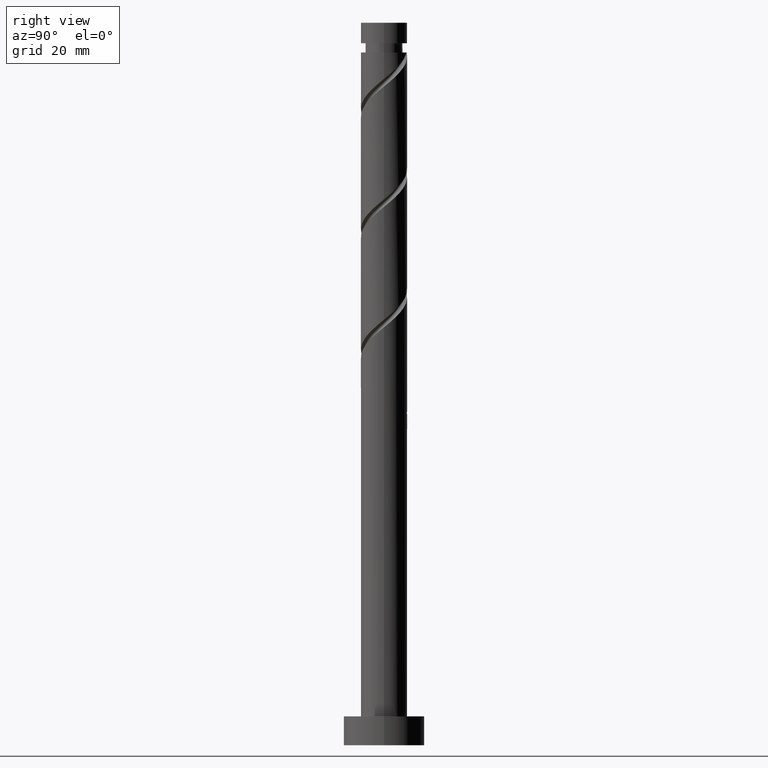
[diagram: clean part render]
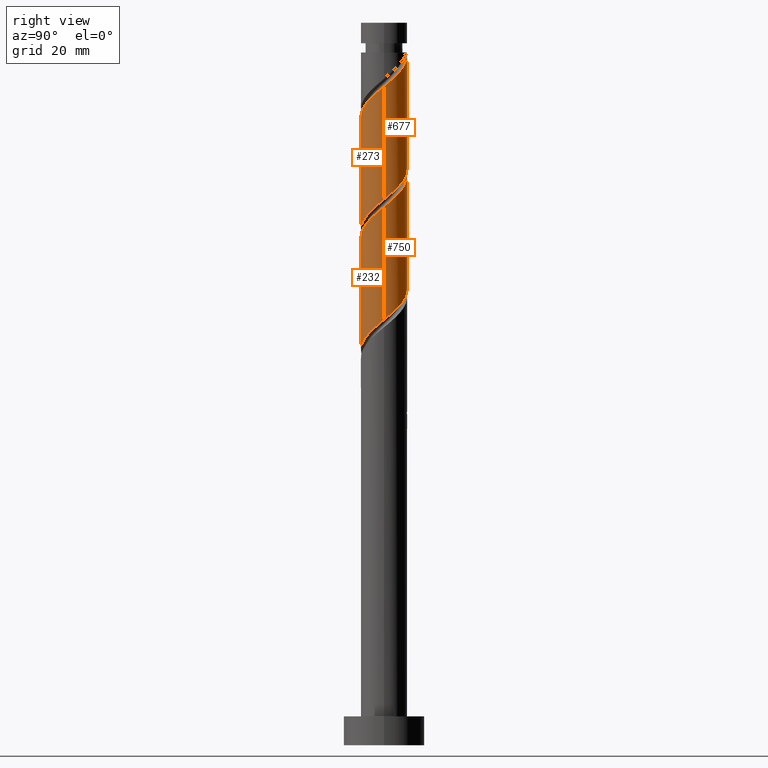
[diagram: same view with one multi-face feature highlighted, each face labeled with its STEP entity id]
A machine part, right view. The highlighted faces form ONE feature: a constant-radius fillet chain: 4 tangent blend faces with common blend radius 4 mm. The faces share edges in the B-rep.
Their STEP definitions:
[1] entity #232 (Cylinder):
#27 =( BOUNDED_CURVE ( )  B_SPLINE_CURVE ( 2, ( #1011, #561, #1035, #413, #1244, #1369, #903, #1252, #176, #667, #1378, #1133, #787, #1257, #1141, #63, #547, #1020, #1514, #455, #1411, #821, #595 ),
 .UNSPECIFIED., .F., .T. ) 
 B_SPLINE_CURVE_WITH_KNOTS ( ( 3, 2, 2, 2, 2, 2, 2, 2, 2, 2, 2, 3 ),
 ( 0.3045322023138551937, 0.3125000000000000000, 0.3249999999999999556, 0.3375000000000000222, 0.3499999999999999778, 0.3625000000000000444, 0.3750000000000000000, 0.3874999999999999556, 0.4000000000000000222, 0.4124999999999999778, 0.4250000000000000444, 0.4295322023138551937 ),
 .UNSPECIFIED. ) 
 CURVE ( )  GEOMETRIC_REPRESENTATION_ITEM ( )  RATIONAL_B_SPLINE_CURVE ( ( 0.9039174447099411758, 0.9019565955404704738, 0.9090909090909189416, 0.8978984914501350056, 0.9090909090909189416, 0.8978984914501350056, 0.9090909090909189416, 0.8978984914501350056, 0.9090909090909189416, 0.8978984914501350056, 0.9090909090909189416, 0.8978984914501350056, 0.9090909090909189416, 0.8978984914501350056, 0.9090909090909189416, 0.8978984914501350056, 0.9090909090909189416, 0.8978984914501350056, 0.9090909090909189416, 0.8978984914501350056, 0.9090909090909189416, 0.9050328050005833624, 0.9039174447099411758 ) ) 
 REPRESENTATION_ITEM ( '' )  );
#63 = CARTESIAN_POINT ( 'NONE',  ( 2.519899137249415944, -3.170406666830039466, 90.15939096344952475 ) ) ;
#67 = VERTEX_POINT ( 'NONE', #348 ) ;
#71 = FACE_OUTER_BOUND ( 'NONE', #1275, .T. ) ;
#102 = CARTESIAN_POINT ( 'NONE',  ( 0.4543151893961418497, -3.974115965681417784, 68.80522429678288177 ) ) ;
#176 = CARTESIAN_POINT ( 'NONE',  ( -1.660148792339435131, -3.639217771347842412, 86.51355763011622457 ) ) ;
#213 = CARTESIAN_POINT ( 'NONE',  ( 3.793927577315138855, -1.416856955757478387, 72.45105763011623878 ) ) ;
#221 = CARTESIAN_POINT ( 'NONE',  ( 1.660148792339431356, -3.639217771347837971, 69.84689096344955317 ) ) ;
#232 = ADVANCED_FACE ( 'NONE', ( #71 ), #295, .T. ) ;
#270 = CARTESIAN_POINT ( 'NONE',  ( -3.902159508677975452, -1.083753322405397901, 64.11772429678291019 ) ) ;
#277 = CARTESIAN_POINT ( 'NONE',  ( -4.000000000000000888, -0.2278949497857296891, 63.40953782746041867 ) ) ;
#284 = ORIENTED_EDGE ( 'NONE', *, *, #318, .F. ) ;
#295 = CYLINDRICAL_SURFACE ( 'NONE', #1294, 4.000000000000000000 ) ;
#312 = ORIENTED_EDGE ( 'NONE', *, *, #1224, .F. ) ;
#318 = EDGE_CURVE ( 'NONE', #1248, #709, #27, .T. ) ;
#338 = CARTESIAN_POINT ( 'NONE',  ( 2.703475464551750029, -2.948087585633557772, 70.88855763011621036 ) ) ;
#348 = CARTESIAN_POINT ( 'NONE',  ( -4.000000000000001776, 3.988165340332742643E-15, 63.22002673825315355 ) ) ;
#385 = CARTESIAN_POINT ( 'NONE',  ( -0.7959899496852960166, -3.920000000000000817, 67.76355763011621036 ) ) ;
#413 = CARTESIAN_POINT ( 'NONE',  ( -3.793927577315144628, -1.416856955757479053, 83.90939096344952475 ) ) ;
#455 = CARTESIAN_POINT ( 'NONE',  ( 3.902159508677978561, -1.083753322405400343, 92.24272429678288177 ) ) ;
#461 = VERTEX_POINT ( 'NONE', #473 ) ;
#473 = CARTESIAN_POINT ( 'NONE',  ( 4.000000000000001776, -4.497930834961739408E-15, 73.63669340491979654 ) ) ;
#474 = CARTESIAN_POINT ( 'NONE',  ( 3.920000000000000817, -0.7959899496852961276, 72.97189096344952475 ) ) ;
#506 = CARTESIAN_POINT ( 'NONE',  ( -0.1751229436131137573, -4.046072422684862779, 68.28439096344956738 ) ) ;
#547 = CARTESIAN_POINT ( 'NONE',  ( 2.948087585633561325, -2.703475464551753582, 90.68022429678286755 ) ) ;
#556 = DIRECTION ( 'NONE',  ( -0.000000000000000000, -0.000000000000000000, -1.000000000000000000 ) ) ;
#561 = CARTESIAN_POINT ( 'NONE',  ( -4.000000000000006217, -0.4020151261036834511, 83.05805976405378033 ) ) ;
#595 = CARTESIAN_POINT ( 'NONE',  ( 4.000000000000005329, 2.398896445312912959E-15, 93.14042185531260998 ) ) ;
#649 = CARTESIAN_POINT ( 'NONE',  ( -1.416856955757477943, -3.793927577315138855, 67.24272429678288177 ) ) ;
#667 = CARTESIAN_POINT ( 'NONE',  ( -1.083753322405400121, -3.902159508677978561, 87.03439096344952475 ) ) ;
#704 = CARTESIAN_POINT ( 'NONE',  ( 3.170406666830035025, -2.519899137249414167, 71.40939096344953896 ) ) ;
#709 = VERTEX_POINT ( 'NONE', #1013 ) ;
#737 = CARTESIAN_POINT ( 'NONE',  ( -3.376276034017704042, -2.236544262273465034, 65.15939096344955317 ) ) ;
#766 = EDGE_CURVE ( 'NONE', #461, #67, #1402, .T. ) ;
#787 = CARTESIAN_POINT ( 'NONE',  ( 0.7959899496852953504, -3.920000000000007034, 88.59689096344955317 ) ) ;
#798 = LINE ( 'NONE', #1263, #1321 ) ;
#821 = CARTESIAN_POINT ( 'NONE',  ( 4.000000000000004441, -0.2278949497857343798, 92.95091076610533776 ) ) ;
#864 = CARTESIAN_POINT ( 'NONE',  ( -1.968378046503446388, -3.482167122072586718, 66.72189096344955317 ) ) ;
#877 = CARTESIAN_POINT ( 'NONE',  ( -4.000000000000001776, 3.988165340332741854E-15, 63.22002673825315355 ) ) ;
#885 = CARTESIAN_POINT ( 'NONE',  ( 4.000000000000000000, 4.898587196589412829E-16, 125.0000000000000000 ) ) ;
#903 = CARTESIAN_POINT ( 'NONE',  ( -2.703475464551753582, -2.948087585633561325, 85.47189096344953896 ) ) ;
#908 = CARTESIAN_POINT ( 'NONE',  ( 0.000000000000000000, 0.000000000000000000, 125.0000000000000000 ) ) ;
#951 = CARTESIAN_POINT ( 'NONE',  ( 3.482167122072586274, -1.968378046503446388, 71.93022429678289598 ) ) ;
#977 = EDGE_CURVE ( 'NONE', #1248, #67, #798, .T. ) ;
#981 = CARTESIAN_POINT ( 'NONE',  ( -2.948087585633557772, -2.703475464551750029, 65.68022429678288177 ) ) ;
#1011 = CARTESIAN_POINT ( 'NONE',  ( -4.000000000000005329, -2.998620556641140804E-15, 82.72375518864592436 ) ) ;
#1013 = CARTESIAN_POINT ( 'NONE',  ( 4.000000000000005329, 2.398896445312912959E-15, 93.14042185531260998 ) ) ;
#1020 = CARTESIAN_POINT ( 'NONE',  ( 3.376276034017707595, -2.236544262273469919, 91.20105763011622457 ) ) ;
#1028 = DIRECTION ( 'NONE',  ( -1.000000000000000000, 0.000000000000000000, 0.000000000000000000 ) ) ;
#1032 = ORIENTED_EDGE ( 'NONE', *, *, #766, .F. ) ;
#1035 = CARTESIAN_POINT ( 'NONE',  ( -3.920000000000007034, -0.7959899496852957945, 83.38855763011621036 ) ) ;
#1067 = CARTESIAN_POINT ( 'NONE',  ( 4.000000000000001776, -4.497930834961739408E-15, 73.63669340491979654 ) ) ;
#1087 = CARTESIAN_POINT ( 'NONE',  ( -3.639217771347837971, -1.660148792339431356, 64.63855763011622457 ) ) ;
#1129 = ORIENTED_EDGE ( 'NONE', *, *, #977, .T. ) ;
#1132 = DIRECTION ( 'NONE',  ( -0.000000000000000000, -0.000000000000000000, -1.000000000000000000 ) ) ;
#1133 = CARTESIAN_POINT ( 'NONE',  ( 0.1751229436131121475, -4.046072422684866332, 88.07605763011621036 ) ) ;
#1141 = CARTESIAN_POINT ( 'NONE',  ( 1.968378046503447498, -3.482167122072591603, 89.63855763011621036 ) ) ;
#1177 = CARTESIAN_POINT ( 'NONE',  ( 1.083753322405397457, -3.902159508677975452, 69.32605763011621036 ) ) ;
#1224 = EDGE_CURVE ( 'NONE', #709, #461, #1270, .T. ) ;
#1244 = CARTESIAN_POINT ( 'NONE',  ( -3.482167122072591603, -1.968378046503447498, 84.43022429678286755 ) ) ;
#1248 = VERTEX_POINT ( 'NONE', #1490 ) ;
#1252 = CARTESIAN_POINT ( 'NONE',  ( -2.236544262273469474, -3.376276034017707595, 85.99272429678288177 ) ) ;
#1257 = CARTESIAN_POINT ( 'NONE',  ( 1.416856955757478831, -3.793927577315144628, 89.11772429678286755 ) ) ;
#1263 = CARTESIAN_POINT ( 'NONE',  ( -4.000000000000000000, 0.000000000000000000, 125.0000000000000000 ) ) ;
#1270 = LINE ( 'NONE', #885, #1511 ) ;
#1275 = EDGE_LOOP ( 'NONE', ( #312, #284, #1129, #1032 ) ) ;
#1287 = CARTESIAN_POINT ( 'NONE',  ( 3.999999999999999112, -0.4020151261036926660, 73.30238882951198320 ) ) ;
#1294 = AXIS2_PLACEMENT_3D ( 'NONE', #908, #556, #1028 ) ;
#1297 = CARTESIAN_POINT ( 'NONE',  ( 2.236544262273464589, -3.376276034017704486, 70.36772429678291019 ) ) ;
#1321 = VECTOR ( 'NONE', #1132, 1000.000000000000000 ) ;
#1323 = CARTESIAN_POINT ( 'NONE',  ( -2.519899137249414167, -3.170406666830035025, 66.20105763011621036 ) ) ;
#1353 = CARTESIAN_POINT ( 'NONE',  ( -3.974115965681417784, -0.4543151893961420718, 63.59689096344956027 ) ) ;
#1369 = CARTESIAN_POINT ( 'NONE',  ( -3.170406666830039466, -2.519899137249416388, 84.95105763011622457 ) ) ;
#1378 = CARTESIAN_POINT ( 'NONE',  ( -0.4543151893961439591, -3.974115965681423113, 87.55522429678289598 ) ) ;
#1402 =( BOUNDED_CURVE ( )  B_SPLINE_CURVE ( 2, ( #1067, #1287, #474, #213, #951, #704, #338, #1297, #221, #1177, #102, #506, #385, #649, #864, #1323, #981, #737, #1087, #270, #1353, #277, #877 ),
 .UNSPECIFIED., .F., .T. ) 
 B_SPLINE_CURVE_WITH_KNOTS ( ( 3, 2, 2, 2, 2, 2, 2, 2, 2, 2, 2, 3 ),
 ( 0.8045322023138553602, 0.8125000000000000000, 0.8249999999999999556, 0.8375000000000000222, 0.8499999999999999778, 0.8625000000000000444, 0.8750000000000000000, 0.8874999999999999556, 0.9000000000000000222, 0.9124999999999999778, 0.9250000000000000444, 0.9295322023138552492 ),
 .UNSPECIFIED. ) 
 CURVE ( )  GEOMETRIC_REPRESENTATION_ITEM ( )  RATIONAL_B_SPLINE_CURVE ( ( 0.9039174447099352916, 0.9019565955404648117, 0.9090909090909131685, 0.8978984914501292325, 0.9090909090909131685, 0.8978984914501292325, 0.9090909090909131685, 0.8978984914501292325, 0.9090909090909131685, 0.8978984914501292325, 0.9090909090909131685, 0.8978984914501292325, 0.9090909090909131685, 0.8978984914501292325, 0.9090909090909131685, 0.8978984914501292325, 0.9090909090909131685, 0.8978984914501292325, 0.9090909090909131685, 0.8978984914501292325, 0.9090909090909131685, 0.9050328050005775893, 0.9039174447099354026 ) ) 
 REPRESENTATION_ITEM ( '' )  );
#1411 = CARTESIAN_POINT ( 'NONE',  ( 3.974115965681423113, -0.4543151893961441812, 92.76355763011621036 ) ) ;
#1490 = CARTESIAN_POINT ( 'NONE',  ( -4.000000000000005329, -2.998620556641140804E-15, 82.72375518864592436 ) ) ;
#1511 = VECTOR ( 'NONE', #1513, 1000.000000000000000 ) ;
#1513 = DIRECTION ( 'NONE',  ( -0.000000000000000000, -0.000000000000000000, -1.000000000000000000 ) ) ;
#1514 = CARTESIAN_POINT ( 'NONE',  ( 3.639217771347842412, -1.660148792339435131, 91.72189096344953896 ) ) ;
[2] entity #750 (Cylinder):
#18 = EDGE_CURVE ( 'NONE', #709, #676, #1425, .T. ) ;
#57 = EDGE_CURVE ( 'NONE', #1260, #461, #1312, .T. ) ;
#74 = CARTESIAN_POINT ( 'NONE',  ( -3.482167122072586718, 1.968378046503445944, 82.34689096344953896 ) ) ;
#93 = EDGE_LOOP ( 'NONE', ( #1497, #883, #1269, #937 ) ) ;
#114 = VECTOR ( 'NONE', #1422, 1000.000000000000000 ) ;
#132 = CARTESIAN_POINT ( 'NONE',  ( 3.974115965681417784, 0.4543151893961415722, 74.01355763011619615 ) ) ;
#193 = CARTESIAN_POINT ( 'NONE',  ( -1.968378046503447498, 3.482167122072591603, 100.0552242967828533 ) ) ;
#200 = CARTESIAN_POINT ( 'NONE',  ( -3.974115965681423113, 0.4543151893961436816, 103.1802242967828818 ) ) ;
#206 = CARTESIAN_POINT ( 'NONE',  ( -3.376276034017708483, 2.236544262273469030, 101.6177242967828533 ) ) ;
#252 = CARTESIAN_POINT ( 'NONE',  ( 1.416856955757478609, 3.793927577315138855, 77.65939096344956738 ) ) ;
#286 = CARTESIAN_POINT ( 'NONE',  ( -4.000000000000001776, 3.988165340332742643E-15, 84.05336007158646794 ) ) ;
#324 = CARTESIAN_POINT ( 'NONE',  ( 4.000000000000006217, 0.4020151261036827850, 93.47472643072046594 ) ) ;
#332 = CARTESIAN_POINT ( 'NONE',  ( -1.416856955757479275, 3.793927577315144628, 99.53439096344955317 ) ) ;
#336 = CARTESIAN_POINT ( 'NONE',  ( -4.000000000000000000, 0.000000000000000000, 125.0000000000000000 ) ) ;
#346 = FACE_OUTER_BOUND ( 'NONE', #93, .T. ) ;
#382 = EDGE_CURVE ( 'NONE', #676, #1260, #1194, .T. ) ;
#441 = CARTESIAN_POINT ( 'NONE',  ( -2.519899137249416388, 3.170406666830039466, 100.5760576301162104 ) ) ;
#459 = CARTESIAN_POINT ( 'NONE',  ( 1.083753322405400565, 3.902159508677978561, 97.45105763011619615 ) ) ;
#461 = VERTEX_POINT ( 'NONE', #473 ) ;
#473 = CARTESIAN_POINT ( 'NONE',  ( 4.000000000000001776, -4.497930834961739408E-15, 73.63669340491979654 ) ) ;
#486 = CARTESIAN_POINT ( 'NONE',  ( 1.968378046503446832, 3.482167122072586274, 77.13855763011623878 ) ) ;
#529 = CARTESIAN_POINT ( 'NONE',  ( 3.376276034017704486, 2.236544262273464145, 75.57605763011621036 ) ) ;
#552 = CARTESIAN_POINT ( 'NONE',  ( -2.236544262273465034, 3.376276034017704486, 80.78439096344956738 ) ) ;
#558 = CARTESIAN_POINT ( 'NONE',  ( -0.4543151893961423493, 3.974115965681417784, 79.22189096344953896 ) ) ;
#565 = CARTESIAN_POINT ( 'NONE',  ( 2.236544262273469919, 3.376276034017707595, 96.40939096344955317 ) ) ;
#573 = CARTESIAN_POINT ( 'NONE',  ( 3.482167122072591603, 1.968378046503446832, 94.84689096344953896 ) ) ;
#581 = CARTESIAN_POINT ( 'NONE',  ( -4.000000000000004441, 0.2278949497857366280, 103.3675774327719949 ) ) ;
#676 = VERTEX_POINT ( 'NONE', #905 ) ;
#687 = CARTESIAN_POINT ( 'NONE',  ( -3.902159508677978561, 1.083753322405399899, 102.6593909634495532 ) ) ;
#692 = CARTESIAN_POINT ( 'NONE',  ( 0.1751229436131132022, 4.046072422684862779, 78.70105763011622457 ) ) ;
#697 = CARTESIAN_POINT ( 'NONE',  ( 0.4543151893961445698, 3.974115965681423113, 97.97189096344956738 ) ) ;
#709 = VERTEX_POINT ( 'NONE', #1013 ) ;
#712 = DIRECTION ( 'NONE',  ( -0.000000000000000000, -0.000000000000000000, -1.000000000000000000 ) ) ;
#714 = CARTESIAN_POINT ( 'NONE',  ( 2.703475464551754026, 2.948087585633560437, 95.88855763011622457 ) ) ;
#750 = ADVANCED_FACE ( 'NONE', ( #346 ), #1186, .T. ) ;
#800 = AXIS2_PLACEMENT_3D ( 'NONE', #1414, #712, #815 ) ;
#808 = CARTESIAN_POINT ( 'NONE',  ( -0.7959899496852949063, 3.920000000000007034, 99.01355763011621036 ) ) ;
#815 = DIRECTION ( 'NONE',  ( -1.000000000000000000, 0.000000000000000000, 0.000000000000000000 ) ) ;
#826 = CARTESIAN_POINT ( 'NONE',  ( -2.703475464551750473, 2.948087585633557772, 81.30522429678288177 ) ) ;
#883 = ORIENTED_EDGE ( 'NONE', *, *, #1224, .T. ) ;
#885 = CARTESIAN_POINT ( 'NONE',  ( 4.000000000000000000, 4.898587196589412829E-16, 125.0000000000000000 ) ) ;
#886 = CARTESIAN_POINT ( 'NONE',  ( 2.519899137249414611, 3.170406666830035025, 76.61772429678288177 ) ) ;
#905 = CARTESIAN_POINT ( 'NONE',  ( -4.000000000000005329, -9.295723725587533771E-16, 103.5570885219792814 ) ) ;
#911 = CARTESIAN_POINT ( 'NONE',  ( 3.793927577315144628, 1.416856955757478831, 94.32605763011619615 ) ) ;
#935 = CARTESIAN_POINT ( 'NONE',  ( 1.660148792339435797, 3.639217771347842412, 96.93022429678286755 ) ) ;
#937 = ORIENTED_EDGE ( 'NONE', *, *, #382, .F. ) ;
#1013 = CARTESIAN_POINT ( 'NONE',  ( 4.000000000000005329, 2.398896445312912959E-15, 93.14042185531260998 ) ) ;
#1023 = CARTESIAN_POINT ( 'NONE',  ( 3.920000000000007034, 0.7959899496852951284, 93.80522429678289598 ) ) ;
#1031 = CARTESIAN_POINT ( 'NONE',  ( -4.000000000000001776, 3.988165340332742643E-15, 84.05336007158648215 ) ) ;
#1048 = CARTESIAN_POINT ( 'NONE',  ( -3.639217771347842856, 1.660148792339434465, 102.1385576301162104 ) ) ;
#1089 = CARTESIAN_POINT ( 'NONE',  ( 3.639217771347839303, 1.660148792339430690, 75.05522429678291019 ) ) ;
#1150 = CARTESIAN_POINT ( 'NONE',  ( -3.920000000000000817, 0.7959899496852955725, 83.38855763011621036 ) ) ;
#1155 = CARTESIAN_POINT ( 'NONE',  ( 0.7959899496852962386, 3.920000000000000817, 78.18022429678291019 ) ) ;
#1171 = CARTESIAN_POINT ( 'NONE',  ( -4.000000000000005329, -9.295723725587533771E-16, 103.5570885219792814 ) ) ;
#1179 = CARTESIAN_POINT ( 'NONE',  ( -3.999999999999999112, 0.4020151261036921109, 83.71905549617865461 ) ) ;
#1186 = CYLINDRICAL_SURFACE ( 'NONE', #800, 4.000000000000000000 ) ;
#1194 = LINE ( 'NONE', #336, #114 ) ;
#1204 = CARTESIAN_POINT ( 'NONE',  ( 2.948087585633558660, 2.703475464551750029, 76.09689096344953896 ) ) ;
#1224 = EDGE_CURVE ( 'NONE', #709, #461, #1270, .T. ) ;
#1260 = VERTEX_POINT ( 'NONE', #286 ) ;
#1269 = ORIENTED_EDGE ( 'NONE', *, *, #57, .F. ) ;
#1270 = LINE ( 'NONE', #885, #1511 ) ;
#1274 = CARTESIAN_POINT ( 'NONE',  ( 4.000000000000005329, 2.398896445312912959E-15, 93.14042185531260998 ) ) ;
#1281 = CARTESIAN_POINT ( 'NONE',  ( -1.660148792339432022, 3.639217771347837971, 80.26355763011623878 ) ) ;
#1300 = CARTESIAN_POINT ( 'NONE',  ( -2.948087585633561769, 2.703475464551753582, 101.0968909634495532 ) ) ;
#1312 =( BOUNDED_CURVE ( )  B_SPLINE_CURVE ( 2, ( #1031, #1179, #1150, #1547, #74, #1416, #826, #552, #1281, #1517, #558, #692, #1155, #252, #486, #886, #1204, #529, #1089, #1480, #132, #1314, #1362 ),
 .UNSPECIFIED., .F., .T. ) 
 B_SPLINE_CURVE_WITH_KNOTS ( ( 3, 2, 2, 2, 2, 2, 2, 2, 2, 2, 2, 3 ),
 ( 0.6795322023138553602, 0.6875000000000000000, 0.6999999999999999556, 0.7125000000000000222, 0.7249999999999999778, 0.7375000000000000444, 0.7500000000000000000, 0.7624999999999999556, 0.7750000000000000222, 0.7874999999999999778, 0.8000000000000000444, 0.8045322023138553602 ),
 .UNSPECIFIED. ) 
 CURVE ( )  GEOMETRIC_REPRESENTATION_ITEM ( )  RATIONAL_B_SPLINE_CURVE ( ( 0.9039174447099352916, 0.9019565955404648117, 0.9090909090909131685, 0.8978984914501292325, 0.9090909090909131685, 0.8978984914501292325, 0.9090909090909131685, 0.8978984914501292325, 0.9090909090909131685, 0.8978984914501292325, 0.9090909090909131685, 0.8978984914501292325, 0.9090909090909131685, 0.8978984914501292325, 0.9090909090909131685, 0.8978984914501292325, 0.9090909090909131685, 0.8978984914501292325, 0.9090909090909131685, 0.8978984914501292325, 0.9090909090909131685, 0.9050328050005773672, 0.9039174447099352916 ) ) 
 REPRESENTATION_ITEM ( '' )  );
#1314 = CARTESIAN_POINT ( 'NONE',  ( 4.000000000000002665, 0.2278949497857236939, 73.82620449412709718 ) ) ;
#1362 = CARTESIAN_POINT ( 'NONE',  ( 4.000000000000001776, -4.497930834961739408E-15, 73.63669340491979654 ) ) ;
#1394 = CARTESIAN_POINT ( 'NONE',  ( 3.170406666830039910, 2.519899137249415944, 95.36772429678286755 ) ) ;
#1407 = CARTESIAN_POINT ( 'NONE',  ( -0.1751229436131116479, 4.046072422684866332, 98.49272429678285334 ) ) ;
#1414 = CARTESIAN_POINT ( 'NONE',  ( 0.000000000000000000, 0.000000000000000000, 125.0000000000000000 ) ) ;
#1416 = CARTESIAN_POINT ( 'NONE',  ( -3.170406666830035025, 2.519899137249414167, 81.82605763011622457 ) ) ;
#1422 = DIRECTION ( 'NONE',  ( -0.000000000000000000, -0.000000000000000000, -1.000000000000000000 ) ) ;
#1425 =( BOUNDED_CURVE ( )  B_SPLINE_CURVE ( 2, ( #1274, #324, #1023, #911, #573, #1394, #714, #565, #935, #459, #697, #1407, #808, #332, #193, #441, #1300, #206, #1048, #687, #200, #581, #1171 ),
 .UNSPECIFIED., .F., .T. ) 
 B_SPLINE_CURVE_WITH_KNOTS ( ( 3, 2, 2, 2, 2, 2, 2, 2, 2, 2, 2, 3 ),
 ( 0.4295322023138551937, 0.4375000000000000000, 0.4499999999999999556, 0.4625000000000000222, 0.4749999999999999778, 0.4875000000000000444, 0.5000000000000000000, 0.5124999999999999556, 0.5250000000000000222, 0.5374999999999999778, 0.5500000000000000444, 0.5545322023138551382 ),
 .UNSPECIFIED. ) 
 CURVE ( )  GEOMETRIC_REPRESENTATION_ITEM ( )  RATIONAL_B_SPLINE_CURVE ( ( 0.9039174447099411758, 0.9019565955404704738, 0.9090909090909189416, 0.8978984914501350056, 0.9090909090909189416, 0.8978984914501350056, 0.9090909090909189416, 0.8978984914501350056, 0.9090909090909189416, 0.8978984914501350056, 0.9090909090909189416, 0.8978984914501350056, 0.9090909090909189416, 0.8978984914501350056, 0.9090909090909189416, 0.8978984914501350056, 0.9090909090909189416, 0.8978984914501350056, 0.9090909090909189416, 0.8978984914501350056, 0.9090909090909189416, 0.9050328050005833624, 0.9039174447099411758 ) ) 
 REPRESENTATION_ITEM ( '' )  );
#1480 = CARTESIAN_POINT ( 'NONE',  ( 3.902159508677975452, 1.083753322405397457, 74.53439096344955317 ) ) ;
#1497 = ORIENTED_EDGE ( 'NONE', *, *, #18, .F. ) ;
#1511 = VECTOR ( 'NONE', #1513, 1000.000000000000000 ) ;
#1513 = DIRECTION ( 'NONE',  ( -0.000000000000000000, -0.000000000000000000, -1.000000000000000000 ) ) ;
#1517 = CARTESIAN_POINT ( 'NONE',  ( -1.083753322405397901, 3.902159508677975452, 79.74272429678289598 ) ) ;
#1547 = CARTESIAN_POINT ( 'NONE',  ( -3.793927577315138855, 1.416856955757477721, 82.86772429678289598 ) ) ;
[3] entity #273 (Cylinder):
#2 = CARTESIAN_POINT ( 'NONE',  ( -0.7959899496852960166, -3.920000000000000817, 88.59689096344956738 ) ) ;
#21 = CARTESIAN_POINT ( 'NONE',  ( 4.000000000000001776, -4.497930834961739408E-15, 94.47002673825316776 ) ) ;
#31 = CARTESIAN_POINT ( 'NONE',  ( -3.376276034017704042, -2.236544262273465034, 85.99272429678289598 ) ) ;
#66 = VECTOR ( 'NONE', #587, 1000.000000000000000 ) ;
#84 = CARTESIAN_POINT ( 'NONE',  ( 4.000000000000000000, 4.898587196589412829E-16, 125.0000000000000000 ) ) ;
#114 = VECTOR ( 'NONE', #1422, 1000.000000000000000 ) ;
#130 = CARTESIAN_POINT ( 'NONE',  ( -3.902159508677975452, -1.083753322405397901, 84.95105763011623878 ) ) ;
#153 = CARTESIAN_POINT ( 'NONE',  ( -0.1751229436131137573, -4.046072422684862779, 89.11772429678289598 ) ) ;
#166 = CARTESIAN_POINT ( 'NONE',  ( -4.000000000000005329, -9.295723725587533771E-16, 103.5570885219792814 ) ) ;
#173 = VERTEX_POINT ( 'NONE', #497 ) ;
#184 = DIRECTION ( 'NONE',  ( -1.000000000000000000, 0.000000000000000000, 0.000000000000000000 ) ) ;
#197 = CARTESIAN_POINT ( 'NONE',  ( -1.083753322405400121, -3.902159508677978561, 107.8677242967828818 ) ) ;
#249 = CARTESIAN_POINT ( 'NONE',  ( 0.4543151893961418497, -3.974115965681417784, 89.63855763011621036 ) ) ;
#273 = ADVANCED_FACE ( 'NONE', ( #1271 ), #1153, .T. ) ;
#286 = CARTESIAN_POINT ( 'NONE',  ( -4.000000000000001776, 3.988165340332742643E-15, 84.05336007158646794 ) ) ;
#294 = CARTESIAN_POINT ( 'NONE',  ( -3.793927577315144628, -1.416856955757479053, 104.7427242967829102 ) ) ;
#307 = CARTESIAN_POINT ( 'NONE',  ( 3.376276034017707595, -2.236544262273469919, 112.0343909634495674 ) ) ;
#313 = CARTESIAN_POINT ( 'NONE',  ( -3.170406666830039466, -2.519899137249416388, 105.7843909634495247 ) ) ;
#330 =( BOUNDED_CURVE ( )  B_SPLINE_CURVE ( 2, ( #166, #658, #892, #294, #535, #313, #1361, #405, #666, #197, #428, #682, #546, #1124, #1368, #672, #1015, #307, #1390, #913, #398, #1256, #1010 ),
 .UNSPECIFIED., .F., .T. ) 
 B_SPLINE_CURVE_WITH_KNOTS ( ( 3, 2, 2, 2, 2, 2, 2, 2, 2, 2, 2, 3 ),
 ( 0.5545322023138551382, 0.5625000000000000000, 0.5749999999999999556, 0.5875000000000000222, 0.5999999999999999778, 0.6125000000000000444, 0.6250000000000000000, 0.6374999999999999556, 0.6500000000000000222, 0.6624999999999999778, 0.6750000000000000444, 0.6795322023138551382 ),
 .UNSPECIFIED. ) 
 CURVE ( )  GEOMETRIC_REPRESENTATION_ITEM ( )  RATIONAL_B_SPLINE_CURVE ( ( 0.9039174447099411758, 0.9019565955404704738, 0.9090909090909189416, 0.8978984914501350056, 0.9090909090909189416, 0.8978984914501350056, 0.9090909090909189416, 0.8978984914501350056, 0.9090909090909189416, 0.8978984914501350056, 0.9090909090909189416, 0.8978984914501350056, 0.9090909090909189416, 0.8978984914501350056, 0.9090909090909189416, 0.8978984914501350056, 0.9090909090909189416, 0.8978984914501350056, 0.9090909090909189416, 0.8978984914501350056, 0.9090909090909189416, 0.9050328050005833624, 0.9039174447099411758 ) ) 
 REPRESENTATION_ITEM ( '' )  );
#336 = CARTESIAN_POINT ( 'NONE',  ( -4.000000000000000000, 0.000000000000000000, 125.0000000000000000 ) ) ;
#360 = CARTESIAN_POINT ( 'NONE',  ( -3.639217771347837971, -1.660148792339431356, 85.47189096344955317 ) ) ;
#372 = CARTESIAN_POINT ( 'NONE',  ( 3.170406666830035025, -2.519899137249414167, 92.24272429678288177 ) ) ;
#379 = CARTESIAN_POINT ( 'NONE',  ( 2.236544262273464589, -3.376276034017704486, 91.20105763011622457 ) ) ;
#382 = EDGE_CURVE ( 'NONE', #676, #1260, #1194, .T. ) ;
#398 = CARTESIAN_POINT ( 'NONE',  ( 3.974115965681423113, -0.4543151893961441812, 113.5968909634495247 ) ) ;
#405 = CARTESIAN_POINT ( 'NONE',  ( -2.236544262273469474, -3.376276034017707595, 106.8260576301162104 ) ) ;
#428 = CARTESIAN_POINT ( 'NONE',  ( -0.4543151893961439591, -3.974115965681423113, 108.3885576301162104 ) ) ;
#449 = EDGE_CURVE ( 'NONE', #173, #688, #1064, .T. ) ;
#497 = CARTESIAN_POINT ( 'NONE',  ( 4.000000000000005329, 3.298482612305254332E-16, 113.9737551886459386 ) ) ;
#512 = CARTESIAN_POINT ( 'NONE',  ( 3.482167122072586274, -1.968378046503446388, 92.76355763011621036 ) ) ;
#517 = CARTESIAN_POINT ( 'NONE',  ( -3.974115965681417784, -0.4543151893961420718, 84.43022429678288177 ) ) ;
#535 = CARTESIAN_POINT ( 'NONE',  ( -3.482167122072591603, -1.968378046503447498, 105.2635576301162104 ) ) ;
#546 = CARTESIAN_POINT ( 'NONE',  ( 0.7959899496852953504, -3.920000000000007034, 109.4302242967828818 ) ) ;
#587 = DIRECTION ( 'NONE',  ( -0.000000000000000000, -0.000000000000000000, -1.000000000000000000 ) ) ;
#615 = CARTESIAN_POINT ( 'NONE',  ( 3.920000000000000817, -0.7959899496852961276, 93.80522429678289598 ) ) ;
#633 = CARTESIAN_POINT ( 'NONE',  ( 4.000000000000002665, -0.4020151261036816193, 94.13572216284532601 ) ) ;
#642 = CARTESIAN_POINT ( 'NONE',  ( -1.968378046503446388, -3.482167122072586718, 87.55522429678289598 ) ) ;
#658 = CARTESIAN_POINT ( 'NONE',  ( -4.000000000000006217, -0.4020151261036805646, 103.8913930973871089 ) ) ;
#666 = CARTESIAN_POINT ( 'NONE',  ( -1.660148792339435131, -3.639217771347842412, 107.3468909634495105 ) ) ;
#672 = CARTESIAN_POINT ( 'NONE',  ( 2.519899137249415944, -3.170406666830039466, 110.9927242967828818 ) ) ;
#676 = VERTEX_POINT ( 'NONE', #905 ) ;
#678 = ORIENTED_EDGE ( 'NONE', *, *, #952, .F. ) ;
#682 = CARTESIAN_POINT ( 'NONE',  ( 0.1751229436131121475, -4.046072422684866332, 108.9093909634495532 ) ) ;
#688 = VERTEX_POINT ( 'NONE', #1022 ) ;
#690 = CARTESIAN_POINT ( 'NONE',  ( 0.000000000000000000, 0.000000000000000000, 125.0000000000000000 ) ) ;
#693 = ORIENTED_EDGE ( 'NONE', *, *, #873, .F. ) ;
#745 = CARTESIAN_POINT ( 'NONE',  ( -2.948087585633557772, -2.703475464551750029, 86.51355763011621036 ) ) ;
#754 = CARTESIAN_POINT ( 'NONE',  ( 1.660148792339431356, -3.639217771347837971, 90.68022429678286755 ) ) ;
#873 = EDGE_CURVE ( 'NONE', #688, #1260, #1041, .T. ) ;
#892 = CARTESIAN_POINT ( 'NONE',  ( -3.920000000000007034, -0.7959899496852957945, 104.2218909634495532 ) ) ;
#905 = CARTESIAN_POINT ( 'NONE',  ( -4.000000000000005329, -9.295723725587533771E-16, 103.5570885219792814 ) ) ;
#913 = CARTESIAN_POINT ( 'NONE',  ( 3.902159508677978561, -1.083753322405400343, 113.0760576301161819 ) ) ;
#952 = EDGE_CURVE ( 'NONE', #676, #173, #330, .T. ) ;
#956 = ORIENTED_EDGE ( 'NONE', *, *, #382, .T. ) ;
#961 = CARTESIAN_POINT ( 'NONE',  ( 1.083753322405397457, -3.902159508677975452, 90.15939096344955317 ) ) ;
#990 = CARTESIAN_POINT ( 'NONE',  ( -1.416856955757477943, -3.793927577315138855, 88.07605763011623878 ) ) ;
#997 = AXIS2_PLACEMENT_3D ( 'NONE', #690, #1125, #184 ) ;
#1010 = CARTESIAN_POINT ( 'NONE',  ( 4.000000000000005329, 3.298482612305254332E-16, 113.9737551886459386 ) ) ;
#1015 = CARTESIAN_POINT ( 'NONE',  ( 2.948087585633561325, -2.703475464551753582, 111.5135576301162104 ) ) ;
#1022 = CARTESIAN_POINT ( 'NONE',  ( 4.000000000000001776, -4.497930834961739408E-15, 94.47002673825316776 ) ) ;
#1040 = ORIENTED_EDGE ( 'NONE', *, *, #449, .F. ) ;
#1041 =( BOUNDED_CURVE ( )  B_SPLINE_CURVE ( 2, ( #21, #633, #615, #1103, #512, #372, #1472, #379, #754, #961, #249, #153, #2, #990, #642, #1110, #745, #31, #360, #130, #517, #1236, #1116 ),
 .UNSPECIFIED., .F., .T. ) 
 B_SPLINE_CURVE_WITH_KNOTS ( ( 3, 2, 2, 2, 2, 2, 2, 2, 2, 2, 2, 3 ),
 ( 0.5545322023138551382, 0.5625000000000000000, 0.5749999999999999556, 0.5875000000000000222, 0.5999999999999999778, 0.6125000000000000444, 0.6250000000000000000, 0.6374999999999999556, 0.6500000000000000222, 0.6624999999999999778, 0.6750000000000000444, 0.6795322023138553602 ),
 .UNSPECIFIED. ) 
 CURVE ( )  GEOMETRIC_REPRESENTATION_ITEM ( )  RATIONAL_B_SPLINE_CURVE ( ( 0.9039174447099354026, 0.9019565955404647006, 0.9090909090909131685, 0.8978984914501292325, 0.9090909090909131685, 0.8978984914501292325, 0.9090909090909131685, 0.8978984914501292325, 0.9090909090909131685, 0.8978984914501292325, 0.9090909090909131685, 0.8978984914501292325, 0.9090909090909131685, 0.8978984914501292325, 0.9090909090909131685, 0.8978984914501292325, 0.9090909090909131685, 0.8978984914501292325, 0.9090909090909131685, 0.8978984914501292325, 0.9090909090909131685, 0.9050328050005773672, 0.9039174447099352916 ) ) 
 REPRESENTATION_ITEM ( '' )  );
#1064 = LINE ( 'NONE', #84, #66 ) ;
#1103 = CARTESIAN_POINT ( 'NONE',  ( 3.793927577315138855, -1.416856955757478387, 93.28439096344956738 ) ) ;
#1110 = CARTESIAN_POINT ( 'NONE',  ( -2.519899137249414167, -3.170406666830035025, 87.03439096344959580 ) ) ;
#1116 = CARTESIAN_POINT ( 'NONE',  ( -4.000000000000001776, 3.988165340332742643E-15, 84.05336007158648215 ) ) ;
#1124 = CARTESIAN_POINT ( 'NONE',  ( 1.416856955757478831, -3.793927577315144628, 109.9510576301162104 ) ) ;
#1125 = DIRECTION ( 'NONE',  ( -0.000000000000000000, -0.000000000000000000, -1.000000000000000000 ) ) ;
#1153 = CYLINDRICAL_SURFACE ( 'NONE', #997, 4.000000000000000000 ) ;
#1194 = LINE ( 'NONE', #336, #114 ) ;
#1213 = EDGE_LOOP ( 'NONE', ( #1040, #678, #956, #693 ) ) ;
#1236 = CARTESIAN_POINT ( 'NONE',  ( -4.000000000000002665, -0.2278949497857242212, 84.24287116079376858 ) ) ;
#1256 = CARTESIAN_POINT ( 'NONE',  ( 4.000000000000004441, -0.2278949497857371831, 113.7842440994386664 ) ) ;
#1260 = VERTEX_POINT ( 'NONE', #286 ) ;
#1271 = FACE_OUTER_BOUND ( 'NONE', #1213, .T. ) ;
#1361 = CARTESIAN_POINT ( 'NONE',  ( -2.703475464551753582, -2.948087585633561325, 106.3052242967828676 ) ) ;
#1368 = CARTESIAN_POINT ( 'NONE',  ( 1.968378046503447498, -3.482167122072591603, 110.4718909634495390 ) ) ;
#1390 = CARTESIAN_POINT ( 'NONE',  ( 3.639217771347842412, -1.660148792339435131, 112.5552242967828676 ) ) ;
#1422 = DIRECTION ( 'NONE',  ( -0.000000000000000000, -0.000000000000000000, -1.000000000000000000 ) ) ;
#1472 = CARTESIAN_POINT ( 'NONE',  ( 2.703475464551750029, -2.948087585633557772, 91.72189096344955317 ) ) ;
[4] entity #677 (Cylinder):
#4 =( BOUNDED_CURVE ( )  B_SPLINE_CURVE ( 2, ( #321, #190, #422, #48, #303, #792, #780, #683, #429, #914, #406, #167, #1264, #893, #536, #1391, #1397, #1526, #1384, #314, #659, #799, #56 ),
 .UNSPECIFIED., .F., .T. ) 
 B_SPLINE_CURVE_WITH_KNOTS ( ( 3, 2, 2, 2, 2, 2, 2, 2, 2, 2, 2, 3 ),
 ( 0.4295322023138552492, 0.4375000000000000000, 0.4500000000000000111, 0.4625000000000000222, 0.4749999999999999778, 0.4874999999999999889, 0.5000000000000000000, 0.5124999999999999556, 0.5250000000000000222, 0.5374999999999999778, 0.5500000000000000444, 0.5545322023138551382 ),
 .UNSPECIFIED. ) 
 CURVE ( )  GEOMETRIC_REPRESENTATION_ITEM ( )  RATIONAL_B_SPLINE_CURVE ( ( 0.9039174447099354026, 0.9019565955404649227, 0.9090909090909131685, 0.8978984914501292325, 0.9090909090909131685, 0.8978984914501292325, 0.9090909090909131685, 0.8978984914501292325, 0.9090909090909131685, 0.8978984914501292325, 0.9090909090909131685, 0.8978984914501292325, 0.9090909090909131685, 0.8978984914501292325, 0.9090909090909131685, 0.8978984914501292325, 0.9090909090909131685, 0.8978984914501292325, 0.9090909090909131685, 0.8978984914501292325, 0.9090909090909131685, 0.9050328050005775893, 0.9039174447099354026 ) ) 
 REPRESENTATION_ITEM ( '' )  );
#12 = VECTOR ( 'NONE', #462, 1000.000000000000000 ) ;
#48 = CARTESIAN_POINT ( 'NONE',  ( -3.793927577315138855, 1.416856955757477721, 103.7010576301162530 ) ) ;
#56 = CARTESIAN_POINT ( 'NONE',  ( 4.000000000000001776, -4.497930834961739408E-15, 94.47002673825316776 ) ) ;
#66 = VECTOR ( 'NONE', #587, 1000.000000000000000 ) ;
#84 = CARTESIAN_POINT ( 'NONE',  ( 4.000000000000000000, 4.898587196589412829E-16, 125.0000000000000000 ) ) ;
#119 = DIRECTION ( 'NONE',  ( -0.000000000000000000, -0.000000000000000000, -1.000000000000000000 ) ) ;
#167 = CARTESIAN_POINT ( 'NONE',  ( 0.1751229436131132022, 4.046072422684862779, 99.53439096344956738 ) ) ;
#173 = VERTEX_POINT ( 'NONE', #497 ) ;
#180 = VERTEX_POINT ( 'NONE', #354 ) ;
#190 = CARTESIAN_POINT ( 'NONE',  ( -4.000000000000000000, 0.4020151261036883916, 104.5523888295119548 ) ) ;
#247 = EDGE_CURVE ( 'NONE', #900, #688, #4, .T. ) ;
#298 = CARTESIAN_POINT ( 'NONE',  ( 0.000000000000000000, 0.000000000000000000, 125.0000000000000000 ) ) ;
#303 = CARTESIAN_POINT ( 'NONE',  ( -3.482167122072586718, 1.968378046503445944, 103.1802242967828818 ) ) ;
#305 = FACE_OUTER_BOUND ( 'NONE', #366, .T. ) ;
#314 = CARTESIAN_POINT ( 'NONE',  ( 3.902159508677975452, 1.083753322405397457, 95.36772429678289598 ) ) ;
#321 = CARTESIAN_POINT ( 'NONE',  ( -4.000000000000000888, 1.919117156250341806E-15, 104.8866934049197965 ) ) ;
#345 = CARTESIAN_POINT ( 'NONE',  ( 0.000000000000000000, 0.000000000000000000, 119.8468909634495532 ) ) ;
#350 =( BOUNDED_CURVE ( )  B_SPLINE_CURVE ( 2, ( #1319, #958, #490, #1329, #640, #383, #994, #1352, #1573, #988, #1477, #479, #1227 ),
 .UNSPECIFIED., .F., .T. ) 
 B_SPLINE_CURVE_WITH_KNOTS ( ( 3, 2, 2, 2, 2, 2, 3 ),
 ( 0.6795322023138551382, 0.6875000000000000000, 0.6999999999999999556, 0.7125000000000000222, 0.7249999999999998668, 0.7374999999999999334, 0.7499999999999998890 ),
 .UNSPECIFIED. ) 
 CURVE ( )  GEOMETRIC_REPRESENTATION_ITEM ( )  RATIONAL_B_SPLINE_CURVE ( ( 0.9039174447099411758, 0.9019565955404704738, 0.9090909090909189416, 0.8978984914501350056, 0.9090909090909189416, 0.8978984914501350056, 0.9090909090909189416, 0.8978984914501350056, 0.9090909090909189416, 0.8978984914501350056, 0.9090909090909189416, 0.8978984914501351167, 0.9090909090909188306 ) ) 
 REPRESENTATION_ITEM ( '' )  );
#354 = CARTESIAN_POINT ( 'NONE',  ( -3.999999999999996447, 0.000000000000000000, 119.8468909634495532 ) ) ;
#366 = EDGE_LOOP ( 'NONE', ( #772, #1098, #1122, #1556, #566 ) ) ;
#383 = CARTESIAN_POINT ( 'NONE',  ( 3.170406666830039910, 2.519899137249415944, 116.2010576301162246 ) ) ;
#390 = AXIS2_PLACEMENT_3D ( 'NONE', #298, #1386, #686 ) ;
#406 = CARTESIAN_POINT ( 'NONE',  ( -0.4543151893961423493, 3.974115965681417784, 100.0552242967829102 ) ) ;
#422 = CARTESIAN_POINT ( 'NONE',  ( -3.920000000000000817, 0.7959899496852955725, 104.2218909634495390 ) ) ;
#429 = CARTESIAN_POINT ( 'NONE',  ( -1.660148792339432022, 3.639217771347837971, 101.0968909634495390 ) ) ;
#442 = EDGE_CURVE ( 'NONE', #180, #1181, #627, .T. ) ;
#449 = EDGE_CURVE ( 'NONE', #173, #688, #1064, .T. ) ;
#462 = DIRECTION ( 'NONE',  ( -0.000000000000000000, -0.000000000000000000, -1.000000000000000000 ) ) ;
#479 = CARTESIAN_POINT ( 'NONE',  ( -0.1751229436131060135, 4.046072422684865444, 119.3260576301161962 ) ) ;
#490 = CARTESIAN_POINT ( 'NONE',  ( 3.920000000000007034, 0.7959899496852951284, 114.6385576301162104 ) ) ;
#497 = CARTESIAN_POINT ( 'NONE',  ( 4.000000000000005329, 3.298482612305254332E-16, 113.9737551886459386 ) ) ;
#536 = CARTESIAN_POINT ( 'NONE',  ( 1.968378046503446832, 3.482167122072586274, 97.97189096344955317 ) ) ;
#566 = ORIENTED_EDGE ( 'NONE', *, *, #442, .T. ) ;
#587 = DIRECTION ( 'NONE',  ( -0.000000000000000000, -0.000000000000000000, -1.000000000000000000 ) ) ;
#627 = CIRCLE ( 'NONE', #822, 3.999999999999996447 ) ;
#640 = CARTESIAN_POINT ( 'NONE',  ( 3.482167122072591603, 1.968378046503446832, 115.6802242967828818 ) ) ;
#659 = CARTESIAN_POINT ( 'NONE',  ( 3.974115965681417784, 0.4543151893961415722, 94.84689096344955317 ) ) ;
#677 = ADVANCED_FACE ( 'NONE', ( #305 ), #1149, .T. ) ;
#683 = CARTESIAN_POINT ( 'NONE',  ( -2.236544262273465034, 3.376276034017704486, 101.6177242967828818 ) ) ;
#686 = DIRECTION ( 'NONE',  ( -1.000000000000000000, 0.000000000000000000, 0.000000000000000000 ) ) ;
#688 = VERTEX_POINT ( 'NONE', #1022 ) ;
#717 = DIRECTION ( 'NONE',  ( -1.000000000000000000, 0.000000000000000000, 0.000000000000000000 ) ) ;
#772 = ORIENTED_EDGE ( 'NONE', *, *, #1515, .F. ) ;
#780 = CARTESIAN_POINT ( 'NONE',  ( -2.703475464551750473, 2.948087585633557772, 102.1385576301162246 ) ) ;
#792 = CARTESIAN_POINT ( 'NONE',  ( -3.170406666830035025, 2.519899137249414167, 102.6593909634495532 ) ) ;
#799 = CARTESIAN_POINT ( 'NONE',  ( 4.000000000000000888, 0.2278949497857348516, 94.65953782746046841 ) ) ;
#822 = AXIS2_PLACEMENT_3D ( 'NONE', #345, #119, #717 ) ;
#893 = CARTESIAN_POINT ( 'NONE',  ( 1.416856955757478609, 3.793927577315138855, 98.49272429678291019 ) ) ;
#900 = VERTEX_POINT ( 'NONE', #1332 ) ;
#914 = CARTESIAN_POINT ( 'NONE',  ( -1.083753322405397901, 3.902159508677975452, 100.5760576301162246 ) ) ;
#958 = CARTESIAN_POINT ( 'NONE',  ( 4.000000000000006217, 0.4020151261036800094, 114.3080597640537945 ) ) ;
#988 = CARTESIAN_POINT ( 'NONE',  ( 1.083753322405400565, 3.902159508677978561, 118.2843909634495390 ) ) ;
#994 = CARTESIAN_POINT ( 'NONE',  ( 2.703475464551754026, 2.948087585633560437, 116.7218909634495390 ) ) ;
#1022 = CARTESIAN_POINT ( 'NONE',  ( 4.000000000000001776, -4.497930834961739408E-15, 94.47002673825316776 ) ) ;
#1064 = LINE ( 'NONE', #84, #66 ) ;
#1098 = ORIENTED_EDGE ( 'NONE', *, *, #449, .T. ) ;
#1122 = ORIENTED_EDGE ( 'NONE', *, *, #247, .F. ) ;
#1149 = CYLINDRICAL_SURFACE ( 'NONE', #390, 4.000000000000000000 ) ;
#1181 = VERTEX_POINT ( 'NONE', #1377 ) ;
#1227 = CARTESIAN_POINT ( 'NONE',  ( -0.7959899496852962386, 3.919999999999741469, 119.8468909634495816 ) ) ;
#1264 = CARTESIAN_POINT ( 'NONE',  ( 0.7959899496852962386, 3.920000000000000817, 99.01355763011622457 ) ) ;
#1319 = CARTESIAN_POINT ( 'NONE',  ( 4.000000000000005329, 3.298482612305254332E-16, 113.9737551886459386 ) ) ;
#1329 = CARTESIAN_POINT ( 'NONE',  ( 3.793927577315144628, 1.416856955757478831, 115.1593909634495390 ) ) ;
#1332 = CARTESIAN_POINT ( 'NONE',  ( -4.000000000000000888, 1.919117156250341806E-15, 104.8866934049198107 ) ) ;
#1334 = EDGE_CURVE ( 'NONE', #180, #900, #1550, .T. ) ;
#1352 = CARTESIAN_POINT ( 'NONE',  ( 2.236544262273469919, 3.376276034017707595, 117.2427242967828676 ) ) ;
#1377 = CARTESIAN_POINT ( 'NONE',  ( -0.7959899496852962386, 3.919999999999741469, 119.8468909634495958 ) ) ;
#1384 = CARTESIAN_POINT ( 'NONE',  ( 3.639217771347839303, 1.660148792339430690, 95.88855763011621036 ) ) ;
#1386 = DIRECTION ( 'NONE',  ( -0.000000000000000000, -0.000000000000000000, -1.000000000000000000 ) ) ;
#1391 = CARTESIAN_POINT ( 'NONE',  ( 2.519899137249414611, 3.170406666830035025, 97.45105763011622457 ) ) ;
#1397 = CARTESIAN_POINT ( 'NONE',  ( 2.948087585633558660, 2.703475464551750029, 96.93022429678288177 ) ) ;
#1477 = CARTESIAN_POINT ( 'NONE',  ( 0.4543151893961445698, 3.974115965681423113, 118.8052242967829102 ) ) ;
#1515 = EDGE_CURVE ( 'NONE', #173, #1181, #350, .T. ) ;
#1525 = CARTESIAN_POINT ( 'NONE',  ( -4.000000000000000000, 0.000000000000000000, 125.0000000000000000 ) ) ;
#1526 = CARTESIAN_POINT ( 'NONE',  ( 3.376276034017704486, 2.236544262273464145, 96.40939096344955317 ) ) ;
#1550 = LINE ( 'NONE', #1525, #12 ) ;
#1556 = ORIENTED_EDGE ( 'NONE', *, *, #1334, .F. ) ;
#1573 = CARTESIAN_POINT ( 'NONE',  ( 1.660148792339435797, 3.639217771347842412, 117.7635576301161962 ) ) ;